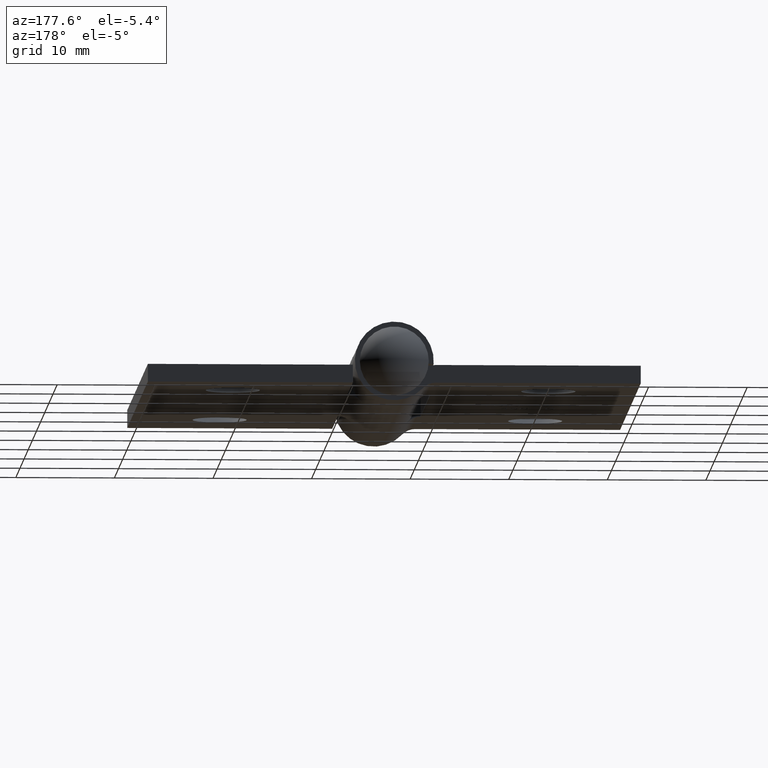
[diagram: clean part render]
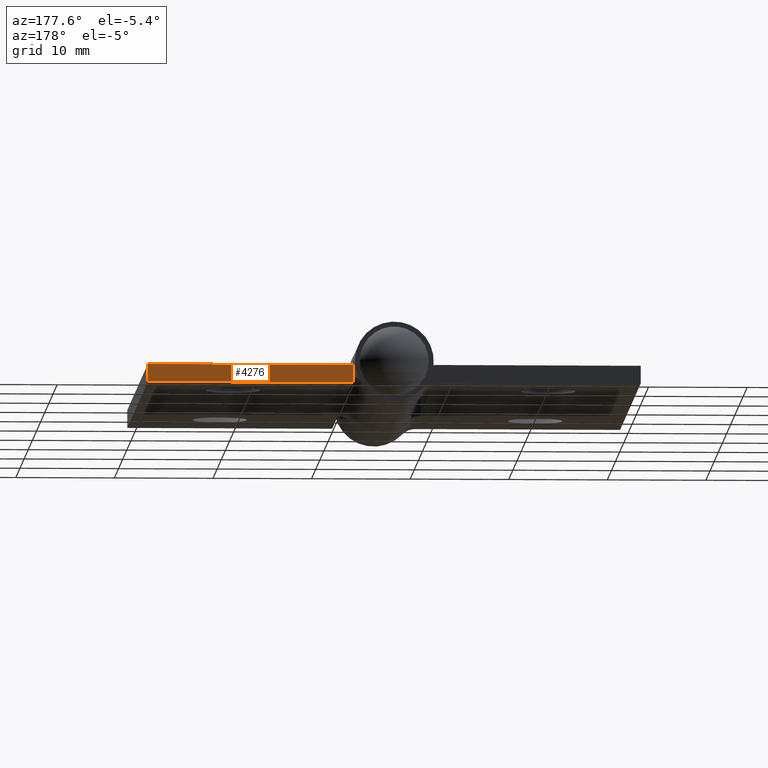
[diagram: same view with one face highlighted and labeled with its STEP entity id]
A machine part, auxiliary view. The second image highlights one B-rep face of the part: STEP entity #4276.
In plain terms, the highlighted planar face has unit normal (0, 1, 0).
Its self-contained STEP definition (entity closure, byte-faithful):
#151 = VECTOR ( 'NONE', #7495, 1000.000000000000000 ) ;
#162 = DIRECTION ( 'NONE',  ( -0.000000000000000000, -0.000000000000000000, 1.000000000000000000 ) ) ;
#200 = ORIENTED_EDGE ( 'NONE', *, *, #4452, .F. ) ;
#212 = VERTEX_POINT ( 'NONE', #7457 ) ;
#542 = VERTEX_POINT ( 'NONE', #2649 ) ;
#1195 = CARTESIAN_POINT ( 'NONE',  ( -25.00000000000000000, -25.00000000000000000, -0.4000000000000001887 ) ) ;
#1311 = LINE ( 'NONE', #1195, #9483 ) ;
#1484 = EDGE_CURVE ( 'NONE', #8877, #542, #2570, .T. ) ;
#1972 = VECTOR ( 'NONE', #6426, 1000.000000000000000 ) ;
#2570 = LINE ( 'NONE', #10240, #151 ) ;
#2649 = CARTESIAN_POINT ( 'NONE',  ( -4.199999999999996625, -25.00000000000000000, -0.4000000000000001887 ) ) ;
#3485 = VECTOR ( 'NONE', #7011, 1000.000000000000000 ) ;
#4276 = ADVANCED_FACE ( 'NONE', ( #5009 ), #7121, .T. ) ;
#4452 = EDGE_CURVE ( 'NONE', #212, #4482, #9868, .T. ) ;
#4482 = VERTEX_POINT ( 'NONE', #8413 ) ;
#4487 = ORIENTED_EDGE ( 'NONE', *, *, #1484, .F. ) ;
#5009 = FACE_OUTER_BOUND ( 'NONE', #11523, .T. ) ;
#5012 = CARTESIAN_POINT ( 'NONE',  ( -25.00000000000000000, -25.00000000000000000, -0.4000000000000001887 ) ) ;
#5145 = DIRECTION ( 'NONE',  ( 0.000000000000000000, -0.000000000000000000, -1.000000000000000000 ) ) ;
#6426 = DIRECTION ( 'NONE',  ( -1.000000000000000000, -0.000000000000000000, -0.000000000000000000 ) ) ;
#6586 = CARTESIAN_POINT ( 'NONE',  ( -25.00000000000000000, -25.00000000000000000, -2.200000000000000178 ) ) ;
#7011 = DIRECTION ( 'NONE',  ( 0.000000000000000000, 0.000000000000000000, 1.000000000000000000 ) ) ;
#7121 = PLANE ( 'NONE',  #11120 ) ;
#7457 = CARTESIAN_POINT ( 'NONE',  ( -4.199999999999996625, -25.00000000000000000, -2.200000000000000178 ) ) ;
#7495 = DIRECTION ( 'NONE',  ( 1.000000000000000000, 0.000000000000000000, 0.000000000000000000 ) ) ;
#8413 = CARTESIAN_POINT ( 'NONE',  ( -25.00000000000000000, -25.00000000000000000, -2.200000000000000178 ) ) ;
#8877 = VERTEX_POINT ( 'NONE', #5012 ) ;
#9242 = LINE ( 'NONE', #10516, #3485 ) ;
#9338 = EDGE_CURVE ( 'NONE', #212, #542, #9242, .T. ) ;
#9483 = VECTOR ( 'NONE', #162, 1000.000000000000000 ) ;
#9682 = ORIENTED_EDGE ( 'NONE', *, *, #11461, .F. ) ;
#9868 = LINE ( 'NONE', #6586, #1972 ) ;
#9869 = DIRECTION ( 'NONE',  ( 0.000000000000000000, -1.000000000000000000, 0.000000000000000000 ) ) ;
#10240 = CARTESIAN_POINT ( 'NONE',  ( -25.00000000000000000, -25.00000000000000000, -0.4000000000000001887 ) ) ;
#10516 = CARTESIAN_POINT ( 'NONE',  ( -4.199999999999996625, -25.00000000000000000, -4.000000000000000000 ) ) ;
#10625 = CARTESIAN_POINT ( 'NONE',  ( -4.199999999999997513, -25.00000000000000000, -4.000000000000000000 ) ) ;
#10942 = ORIENTED_EDGE ( 'NONE', *, *, #9338, .T. ) ;
#11120 = AXIS2_PLACEMENT_3D ( 'NONE', #10625, #9869, #5145 ) ;
#11461 = EDGE_CURVE ( 'NONE', #4482, #8877, #1311, .T. ) ;
#11523 = EDGE_LOOP ( 'NONE', ( #200, #10942, #4487, #9682 ) ) ;